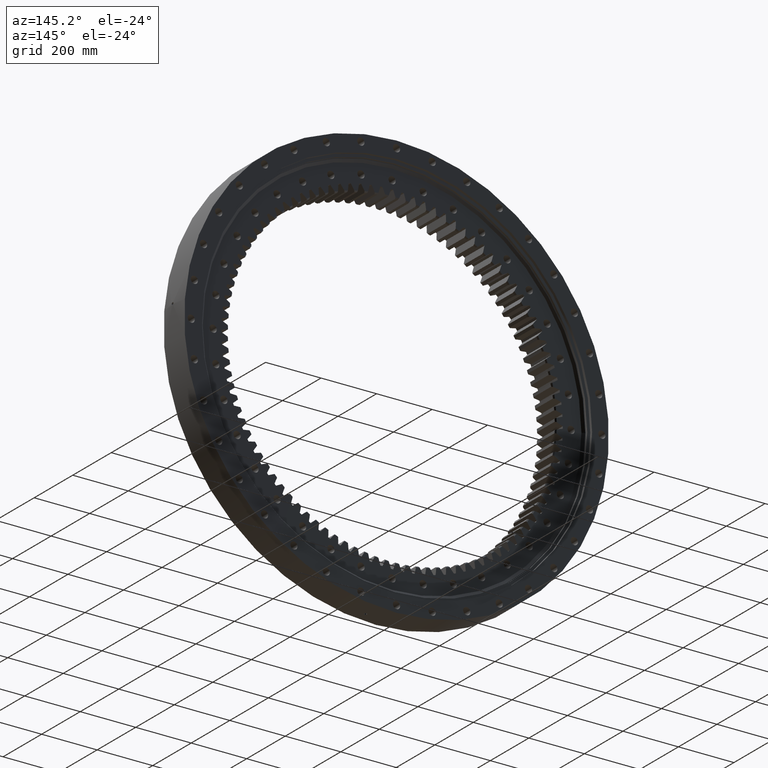
[diagram: clean part render]
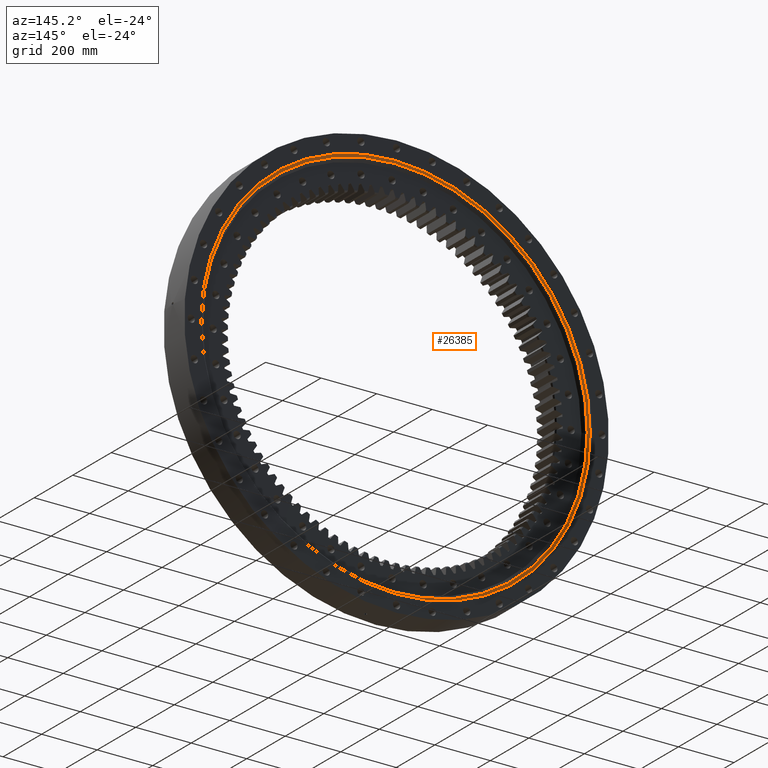
[diagram: same view with one face highlighted and labeled with its STEP entity id]
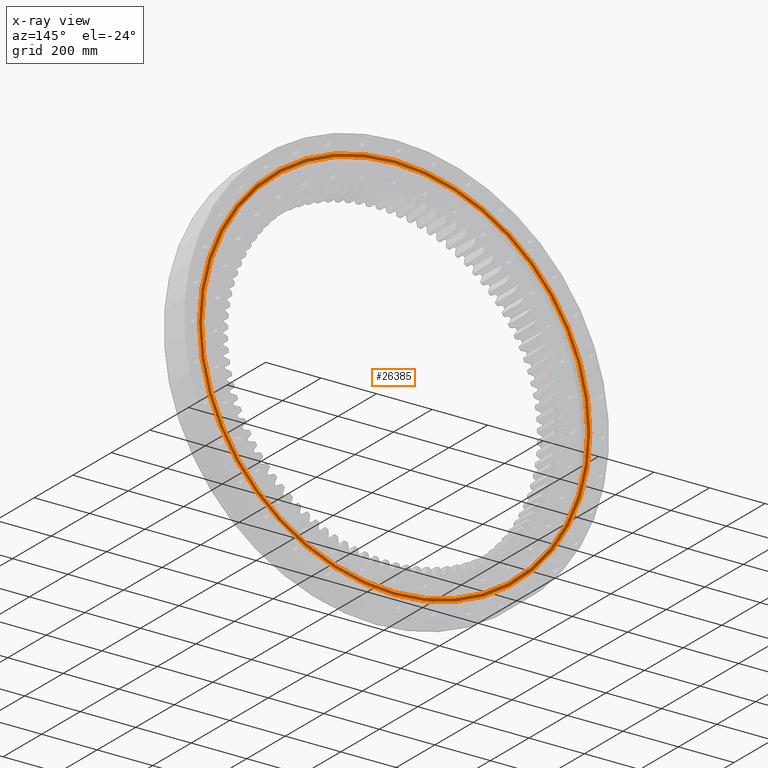
[diagram: x-ray of the same camera — body ghosted, the highlighted face saturated]
A machine part, auxiliary view. The second image highlights one B-rep face of the part: STEP entity #26385.
The next image is the same camera in x-ray: the body ghosted, the highlighted face saturated — about 0% of this face is hidden behind the body in this view.
In plain terms, the highlighted planar face has unit normal (0, -1, 0).
Its self-contained STEP definition (entity closure, byte-faithful):
#1244 = EDGE_CURVE ( 'NONE', #26953, #9490, #14849, .T. ) ;
#2265 = FACE_BOUND ( 'NONE', #16934, .T. ) ;
#2952 = CIRCLE ( 'NONE', #6883, 694.2500000000000000 ) ;
#5755 = CIRCLE ( 'NONE', #17018, 705.0000000000000000 ) ;
#6001 = CARTESIAN_POINT ( 'NONE',  ( -6.455334729493070700E-015, 55.00000000000012100, 1.921819545462185100E-015 ) ) ;
#6061 = ORIENTED_EDGE ( 'NONE', *, *, #26131, .F. ) ;
#6883 = AXIS2_PLACEMENT_3D ( 'NONE', #6001, #21698, #8254 ) ;
#8254 = DIRECTION ( 'NONE',  ( 5.551115123125782100E-017, 8.995325190517112500E-017, 1.000000000000000000 ) ) ;
#8356 = ORIENTED_EDGE ( 'NONE', *, *, #1244, .F. ) ;
#9021 = ORIENTED_EDGE ( 'NONE', *, *, #9048, .F. ) ;
#9048 = EDGE_CURVE ( 'NONE', #9490, #26953, #5755, .T. ) ;
#9490 = VERTEX_POINT ( 'NONE', #14817 ) ;
#11285 = PLANE ( 'NONE',  #26530 ) ;
#12106 = FACE_OUTER_BOUND ( 'NONE', #26746, .T. ) ;
#12274 = DIRECTION ( 'NONE',  ( -1.173697223544192200E-016, 1.000000000000000000, -8.678047897292858100E-017 ) ) ;
#13534 = DIRECTION ( 'NONE',  ( 5.551115123125781500E-017, 8.678047897292858100E-017, 1.000000000000000000 ) ) ;
#14817 = CARTESIAN_POINT ( 'NONE',  ( 3.268002688854369300E-014, 55.00000000000017800, 705.0000000000000000 ) ) ;
#14849 = CIRCLE ( 'NONE', #26341, 705.0000000000000000 ) ;
#15110 = DIRECTION ( 'NONE',  ( 5.551115123125782100E-017, 8.858162430519865900E-017, 1.000000000000000000 ) ) ;
#16114 = VERTEX_POINT ( 'NONE', #26972 ) ;
#16934 = EDGE_LOOP ( 'NONE', ( #22017, #6061 ) ) ;
#17018 = AXIS2_PLACEMENT_3D ( 'NONE', #17110, #18053, #15110 ) ;
#17110 = CARTESIAN_POINT ( 'NONE',  ( -6.455334729493070700E-015, 55.00000000000012100, -4.092091796851949100E-015 ) ) ;
#17501 = CARTESIAN_POINT ( 'NONE',  ( 3.208328201280767100E-014, 55.00000000000017800, 694.2500000000000000 ) ) ;
#18053 = DIRECTION ( 'NONE',  ( 1.173697223544192200E-016, -1.000000000000000000, 8.678047897292858100E-017 ) ) ;
#19142 = VERTEX_POINT ( 'NONE', #17501 ) ;
#19828 = CIRCLE ( 'NONE', #27083, 694.2500000000000000 ) ;
#19965 = CARTESIAN_POINT ( 'NONE',  ( -1.325151442991902700E-013, 55.00000000000005700, -705.0000000000000000 ) ) ;
#20189 = CARTESIAN_POINT ( 'NONE',  ( 3.184735962007481900E-014, 55.00000000000017800, 690.0000000000000000 ) ) ;
#21698 = DIRECTION ( 'NONE',  ( -1.173697223544192200E-016, 1.000000000000000000, -8.678047897292858100E-017 ) ) ;
#22017 = ORIENTED_EDGE ( 'NONE', *, *, #26233, .F. ) ;
#23048 = CARTESIAN_POINT ( 'NONE',  ( -6.455334729493070700E-015, 55.00000000000012100, -4.092091796851949100E-015 ) ) ;
#23752 = DIRECTION ( 'NONE',  ( 5.551115123125782100E-017, 8.858162430519865900E-017, 1.000000000000000000 ) ) ;
#23833 = DIRECTION ( 'NONE',  ( 1.173697223544192200E-016, -1.000000000000000000, 8.678047897292858100E-017 ) ) ;
#25773 = CARTESIAN_POINT ( 'NONE',  ( -6.455334729493070700E-015, 55.00000000000012100, 1.921819545462185100E-015 ) ) ;
#26131 = EDGE_CURVE ( 'NONE', #16114, #19142, #19828, .T. ) ;
#26233 = EDGE_CURVE ( 'NONE', #19142, #16114, #2952, .T. ) ;
#26341 = AXIS2_PLACEMENT_3D ( 'NONE', #23048, #23833, #23752 ) ;
#26385 = ADVANCED_FACE ( 'NONE', ( #12106, #2265 ), #11285, .F. ) ;
#26530 = AXIS2_PLACEMENT_3D ( 'NONE', #20189, #27067, #13534 ) ;
#26746 = EDGE_LOOP ( 'NONE', ( #9021, #8356 ) ) ;
#26953 = VERTEX_POINT ( 'NONE', #19965 ) ;
#26972 = CARTESIAN_POINT ( 'NONE',  ( -1.295485108562399900E-013, 55.00000000000005700, -694.2500000000000000 ) ) ;
#27067 = DIRECTION ( 'NONE',  ( 1.173697223544192200E-016, -1.000000000000000000, 8.678047897292856900E-017 ) ) ;
#27083 = AXIS2_PLACEMENT_3D ( 'NONE', #25773, #12274, #28103 ) ;
#28103 = DIRECTION ( 'NONE',  ( 5.551115123125782100E-017, 8.995325190517112500E-017, 1.000000000000000000 ) ) ;